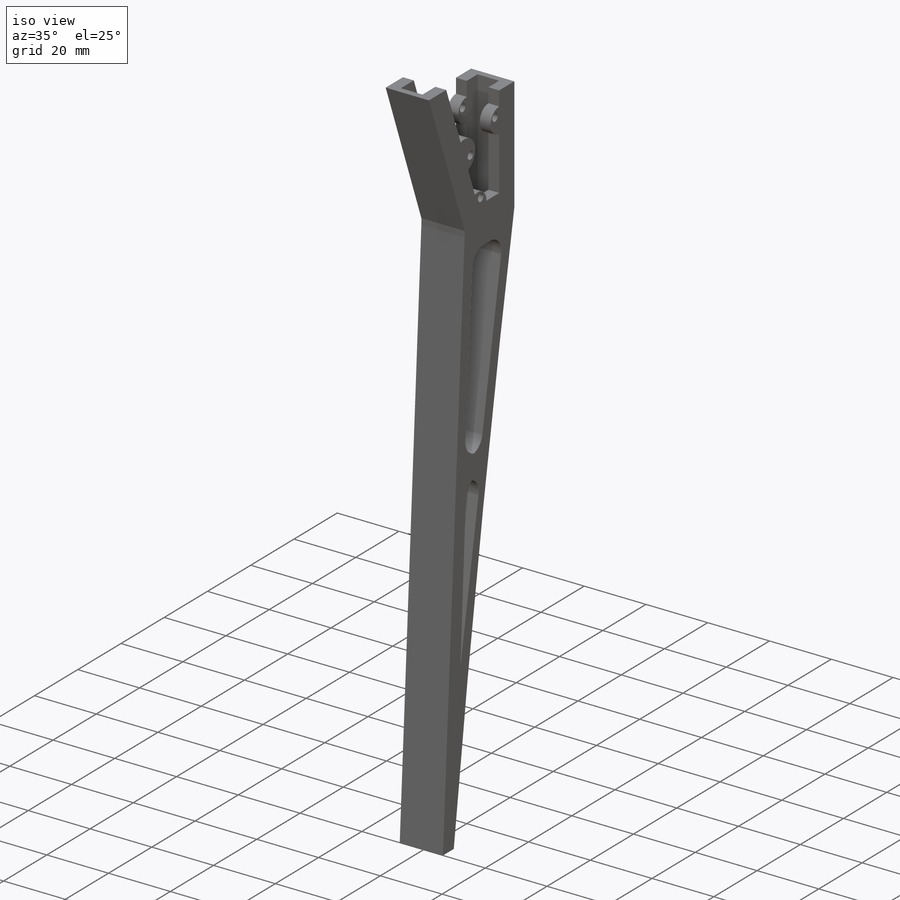
[diagram: iso view]
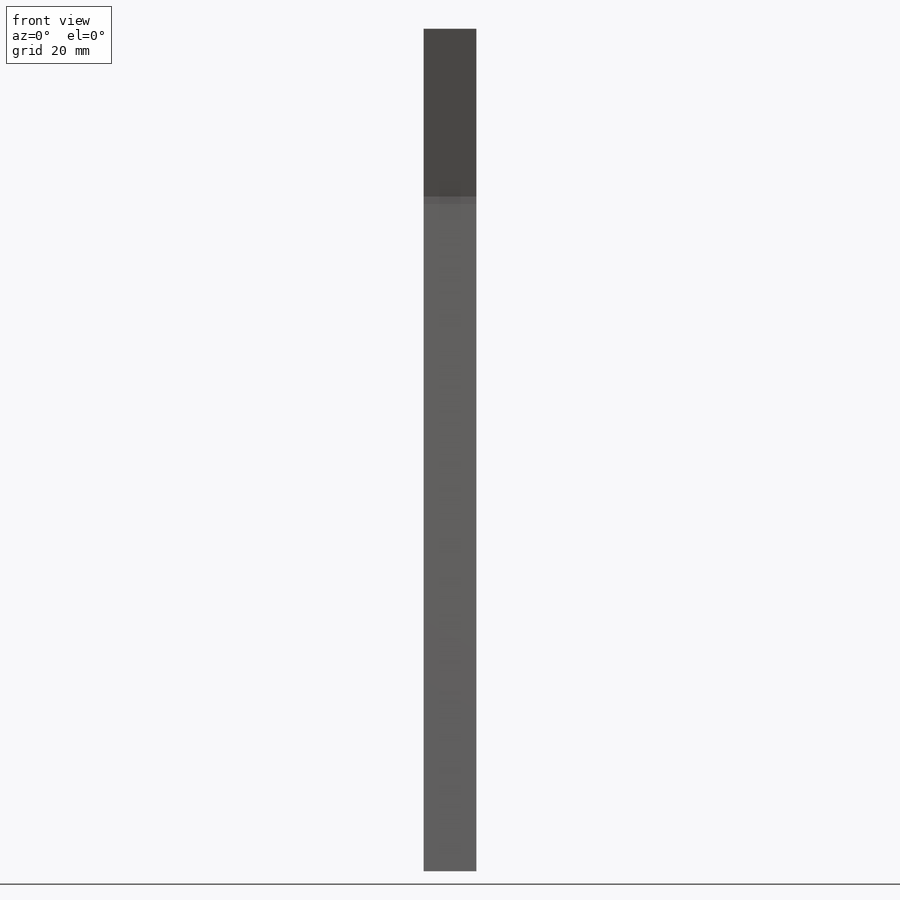
[diagram: front view]
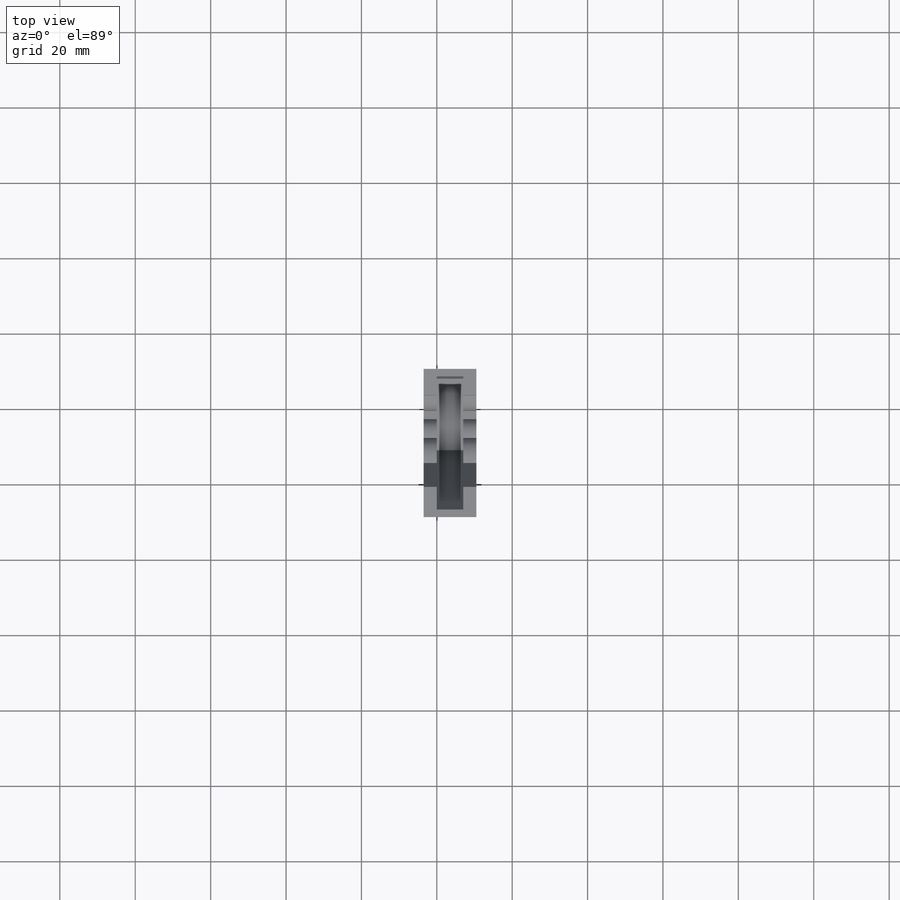
[diagram: top view]
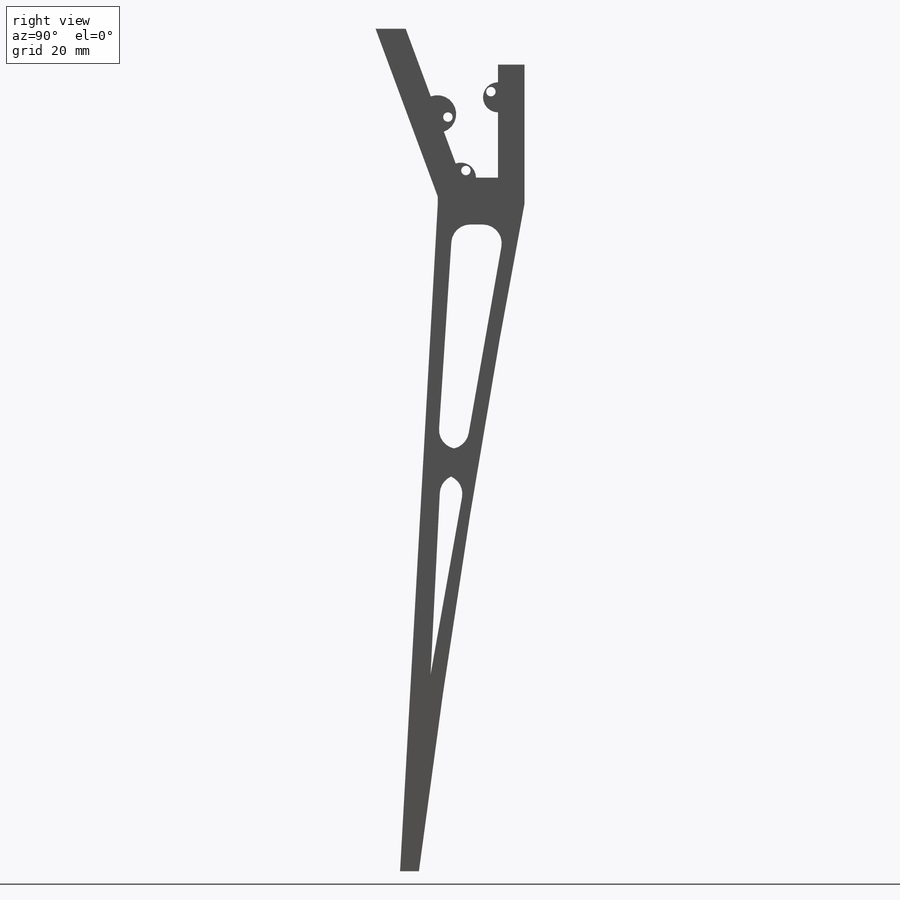
[diagram: right view]
SOLIDWORKS PART (.sldprt)
format: sldprt  version: not decoded by parser v0  size: 376,832 bytes
history: native  units: mm
features: sketch x12, extrude x8, cut_extrude x2, material x1, sweep x1, fillet x1 (+13 scaffold rows collapsed)
feature tree (38):
  scaffold x13  (default folders/planes/origin — collapsed)
  material  "Material <not specified>"
  sketch  "Sketch1"  dims[D1=5.0mm D2=7.0mm D3=14.0mm D4=7.0mm D5=2.0mm D6=3.5mm]
  extrude  "Boss-Extrude1"  Depth=35mm
  sketch  "Sketch6"  dims[D1=14.0mm D2=23.0mm]
  extrude  "Boss-Extrude6"  Depth=2mm
  sketch  "Sketch7"  dims[c1.D1=2.0mm c1.D2=8.0mm c1.D3=8.0mm c1.D4=3.5mm c2.D3=7.0mm c2.D4=3.5mm]
  sketch  "Sketch8"  dims[D1=16.5mm D2=44.5mm]
  sweep  "Sweep1"
  sketch  "Sketch9"  dims[c1.D1=177.0mm c1.D2=5.0mm c1.D3=5.0mm c2.D1=177.0mm c2.D2=5.0mm c2.D3=10.0mm c3.D1=177.0mm c3.D3=10.0mm c3.D4=3.0mm]
  sketch  "Sketch13"  dims[D1=5.0mm]
  extrude  "Boss-Extrude8"  [1 undecoded]
  sketch  "Sketch14"  dims[c1.D1=2.5mm c1.D2=2.5mm c2.D1=1.9mm c2.D2=1.9mm]
  extrude  "Boss-Extrude9"  [1 undecoded]
  sketch  "Sketch15"
  extrude  "Boss-Extrude10"  [1 undecoded]
  sketch  "Sketch16"  dims[c1.D1=2.5mm c1.D2=2.5mm c2.D1=1.9mm c2.D2=5.5mm]
  extrude  "Boss-Extrude11"  [1 undecoded]
  sketch  "Sketch18"  dims[c1.D1=2.5mm c1.D4=5.0mm c2.D1=0.8mm c2.D2=2.8mm c2.D3=14.0mm]
  extrude  "Boss-Extrude12"  [1 undecoded]
  sketch  "Sketch19"
  cut_extrude  "Cut-Extrude5"  [1 undecoded]
  sketch  "Sketch20"
  cut_extrude  "Cut-Extrude6"  Depth=10mm
  extrude  "Boss-Extrude13"  [1 undecoded]
  fillet  "Fillet1"  Radius=5mm
decode coverage: 13 of 24 modeling features carry decoded parameters
note: 7 parameter values undecoded
summary: no parameter record found for 7 features
note: suppression state not decoded; provenance and decode notes live in map.json
